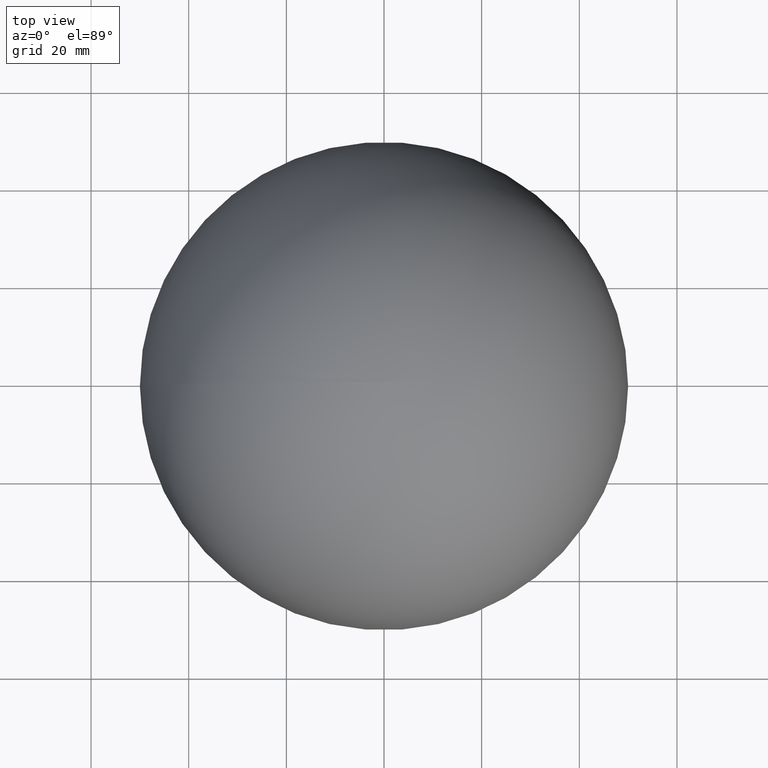
[diagram: clean part render]
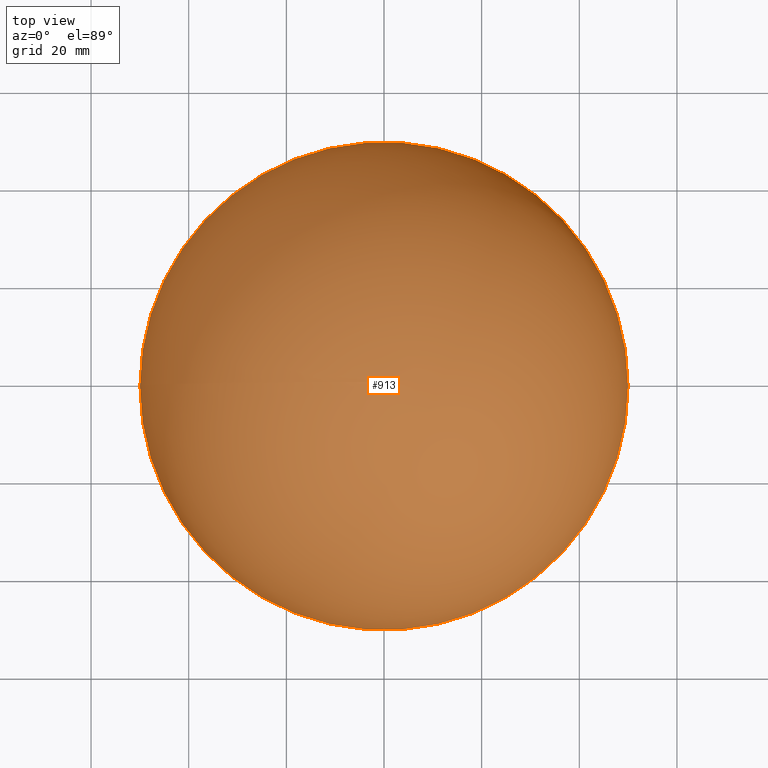
[diagram: same view with one face highlighted and labeled with its STEP entity id]
A machine part, top view. The second image highlights one B-rep face of the part: STEP entity #913.
In plain terms, the highlighted spherical surface has radius 50 mm.
Its self-contained STEP definition (entity closure, byte-faithful):
#913 = ADVANCED_FACE ( 'NONE', ( #4644 ), #8600, .T. ) ;
#1194 = DIRECTION ( 'NONE',  ( 6.982962677686266711E-15, 0.000000000000000000, -1.000000000000000000 ) ) ;
#1431 = DIRECTION ( 'NONE',  ( -6.982962677686266711E-15, 0.000000000000000000, 1.000000000000000000 ) ) ;
#1716 = EDGE_CURVE ( 'NONE', #6590, #7424, #7664, .T. ) ;
#1924 = DIRECTION ( 'NONE',  ( 6.982962677686266711E-15, 0.000000000000000000, -1.000000000000000000 ) ) ;
#1928 = DIRECTION ( 'NONE',  ( -1.000000000000000000, 0.000000000000000000, -6.982962677686266711E-15 ) ) ;
#2914 = EDGE_CURVE ( 'NONE', #7424, #6590, #7450, .T. ) ;
#2997 = ORIENTED_EDGE ( 'NONE', *, *, #1716, .F. ) ;
#3682 = AXIS2_PLACEMENT_3D ( 'NONE', #5877, #1431, #5083 ) ;
#4198 = EDGE_LOOP ( 'NONE', ( #2997, #8721 ) ) ;
#4504 = CARTESIAN_POINT ( 'NONE',  ( -50.00000000000000000, 0.000000000000000000, -3.491481338843133355E-13 ) ) ;
#4644 = FACE_OUTER_BOUND ( 'NONE', #4198, .T. ) ;
#4817 = AXIS2_PLACEMENT_3D ( 'NONE', #5634, #1194, #1928 ) ;
#5083 = DIRECTION ( 'NONE',  ( -1.000000000000000000, 0.000000000000000000, -6.982962677686266711E-15 ) ) ;
#5606 = DIRECTION ( 'NONE',  ( -1.000000000000000000, 0.000000000000000000, -6.982962677686266711E-15 ) ) ;
#5634 = CARTESIAN_POINT ( 'NONE',  ( 0.000000000000000000, 0.000000000000000000, 0.000000000000000000 ) ) ;
#5661 = CARTESIAN_POINT ( 'NONE',  ( 0.000000000000000000, 0.000000000000000000, 0.000000000000000000 ) ) ;
#5877 = CARTESIAN_POINT ( 'NONE',  ( 0.000000000000000000, 0.000000000000000000, 0.000000000000000000 ) ) ;
#6590 = VERTEX_POINT ( 'NONE', #4504 ) ;
#7122 = AXIS2_PLACEMENT_3D ( 'NONE', #5661, #1924, #5606 ) ;
#7424 = VERTEX_POINT ( 'NONE', #9098 ) ;
#7450 = CIRCLE ( 'NONE', #7122, 50.00000000000000000 ) ;
#7664 = CIRCLE ( 'NONE', #4817, 50.00000000000000000 ) ;
#8600 = SPHERICAL_SURFACE ( 'NONE', #3682, 50.00000000000000000 ) ;
#8721 = ORIENTED_EDGE ( 'NONE', *, *, #2914, .F. ) ;
#9098 = CARTESIAN_POINT ( 'NONE',  ( 50.00000000000000000, 6.123233995736766085E-15, 3.491481338843133355E-13 ) ) ;